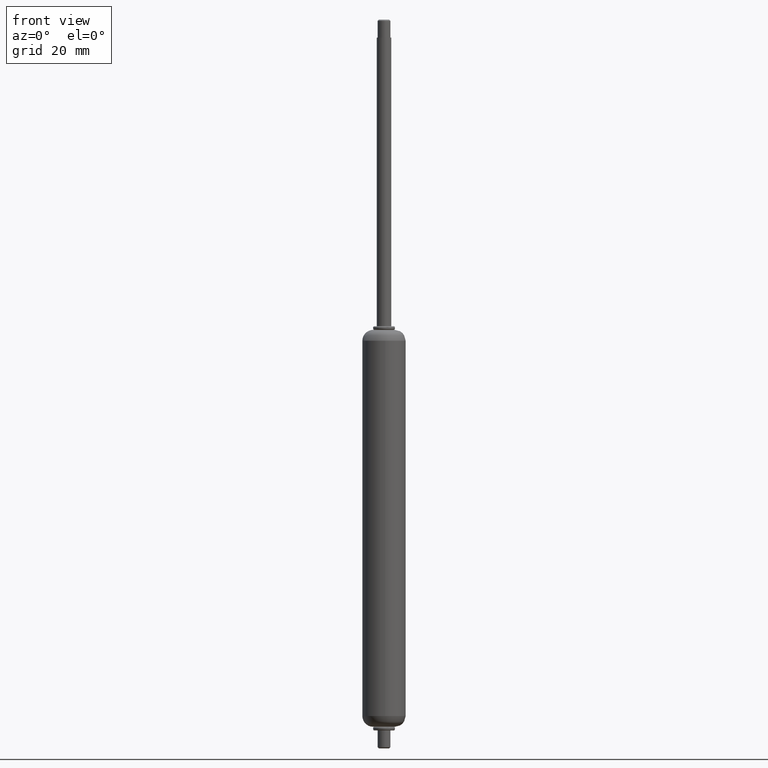
[diagram: clean part render]
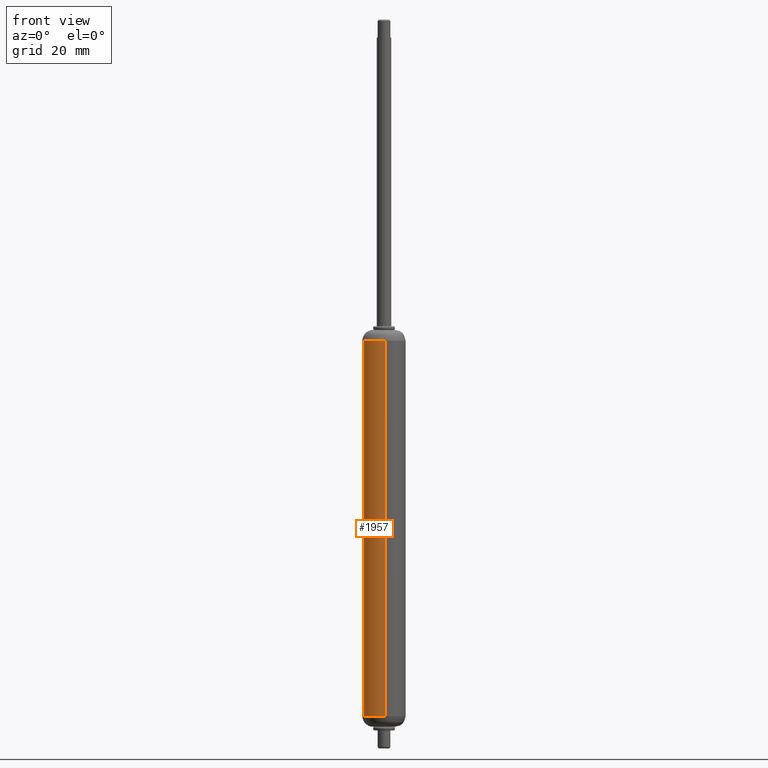
[diagram: same view with one face highlighted and labeled with its STEP entity id]
A machine part, front view. The second image highlights one B-rep face of the part: STEP entity #1957.
In plain terms, the highlighted face is a freeform B-spline surface patch.
Its self-contained STEP definition (entity closure, byte-faithful):
#1768=CARTESIAN_POINT('',(-5.616861472639842,-2.109707846400514,-2.999999999999996));
#1769=VERTEX_POINT('',#1768);
#1817=CARTESIAN_POINT('',(0.366289480670478,-5.988808897964537,-3.000000000000002));
#1818=VERTEX_POINT('',#1817);
#1832=CARTESIAN_POINT('',(0.366289501753368,-5.988808896675055,-107.000004000000000));
#1833=VERTEX_POINT('',#1832);
#1834=CARTESIAN_POINT('',(0.366289480670478,-5.988808897964537,-3.000000000000002));
#1835=CARTESIAN_POINT('',(0.366289501753368,-5.988808896675055,-107.000004000000000));
#1836=QUASI_UNIFORM_CURVE('',1,(#1834,#1835),.UNSPECIFIED.,.F.,.U.);
#1837=EDGE_CURVE('',#1818,#1833,#1836,.T.);
#1886=CARTESIAN_POINT('',(-5.616861472639832,-2.109707846400509,-107.000004000000000));
#1887=VERTEX_POINT('',#1886);
#1901=CARTESIAN_POINT('',(-5.616861472639842,-2.109707846400514,-2.999999999999996));
#1902=CARTESIAN_POINT('',(-5.616861472639832,-2.109707846400509,-107.000004000000000));
#1903=QUASI_UNIFORM_CURVE('',1,(#1901,#1902),.UNSPECIFIED.,.F.,.U.);
#1904=EDGE_CURVE('',#1769,#1887,#1903,.T.);
#1909=CARTESIAN_POINT('',(0.366291237209304,-5.988808790530532,-0.399999899999950));
#1910=CARTESIAN_POINT('',(-4.058217490817736,-6.259423337215350,-0.399999899999949));
#1911=CARTESIAN_POINT('',(-5.616861472659112,-2.109707846349194,-0.399999899999949));
#1912=CARTESIAN_POINT('',(0.366291237209304,-5.988808790530532,-109.665004102502000));
#1913=CARTESIAN_POINT('',(-4.058217490817736,-6.259423337215350,-109.665004102501950));
#1914=CARTESIAN_POINT('',(-5.616861472659112,-2.109707846349194,-109.665004102501970));
#1922=(BOUNDED_SURFACE()B_SPLINE_SURFACE(2,1,((#1909,#1912),(#1910,#1913),(#1911,#1914)),.UNSPECIFIED.,.F.,.F.,.U.)B_SPLINE_SURFACE_WITH_KNOTS((3,3),(2,2),(0.0,7.898692343318997),(0.0,109.265004202502000),.UNSPECIFIED.)GEOMETRIC_REPRESENTATION_ITEM()RATIONAL_B_SPLINE_SURFACE(((1.0,1.0),(0.765685424949238,0.765685424949238),(0.906274169979695,0.906274169979695)))REPRESENTATION_ITEM('')SURFACE());
#1923=CARTESIAN_POINT('',(0.366289480670478,-5.988808897964537,-3.000000000000003));
#1924=CARTESIAN_POINT('',(0.183315699059743,-5.999999999999340,-3.0));
#1925=CARTESIAN_POINT('',(2.060574E-013,-5.999999999999340,-3.0));
#1926=CARTESIAN_POINT('',(-4.155657574084771,-5.999999999999340,-3.000000000000001));
#1927=CARTESIAN_POINT('',(-5.616861472639843,-2.109707846400514,-2.999999999999996));
#1935=(BOUNDED_CURVE()B_SPLINE_CURVE(2,(#1923,#1924,#1925,#1926,#1927),.UNSPECIFIED.,.F.,.U.)B_SPLINE_CURVE_WITH_KNOTS((3,2,3),(0.739333012850555,0.750000000000000,0.940284170896024),.UNSPECIFIED.)CURVE()GEOMETRIC_REPRESENTATION_ITEM()RATIONAL_B_SPLINE_CURVE((0.976072150137060,0.987502847195029,1.0,0.777068226788057,0.893499554632235))REPRESENTATION_ITEM(''));
#1936=EDGE_CURVE('',#1818,#1769,#1935,.T.);
#1937=ORIENTED_EDGE('',*,*,#1936,.T.);
#1938=ORIENTED_EDGE('',*,*,#1904,.T.);
#1939=CARTESIAN_POINT('',(0.366289501753385,-5.988808896675302,-107.000004000000020));
#1940=CARTESIAN_POINT('',(0.183315709630745,-5.999999999999321,-107.000003999999980));
#1941=CARTESIAN_POINT('',(2.060574E-013,-5.999999999999321,-107.000004000000000));
#1942=CARTESIAN_POINT('',(-4.155657574084703,-5.999999999999320,-107.000004000000000));
#1943=CARTESIAN_POINT('',(-5.616861472639832,-2.109707846400509,-107.000004000000000));
#1951=(BOUNDED_CURVE()B_SPLINE_CURVE(2,(#1939,#1940,#1941,#1942,#1943),.UNSPECIFIED.,.F.,.U.)B_SPLINE_CURVE_WITH_KNOTS((3,2,3),(0.739333012243124,0.750000000000000,0.940284170896022),.UNSPECIFIED.)CURVE()GEOMETRIC_REPRESENTATION_ITEM()RATIONAL_B_SPLINE_CURVE((0.976072148835220,0.987502846483380,1.0,0.777068226788060,0.893499554632233))REPRESENTATION_ITEM(''));
#1952=EDGE_CURVE('',#1833,#1887,#1951,.T.);
#1953=ORIENTED_EDGE('',*,*,#1952,.F.);
#1954=ORIENTED_EDGE('',*,*,#1837,.F.);
#1955=EDGE_LOOP('',(#1937,#1938,#1953,#1954));
#1956=FACE_OUTER_BOUND('',#1955,.T.);
#1957=ADVANCED_FACE('',(#1956),#1922,.T.);